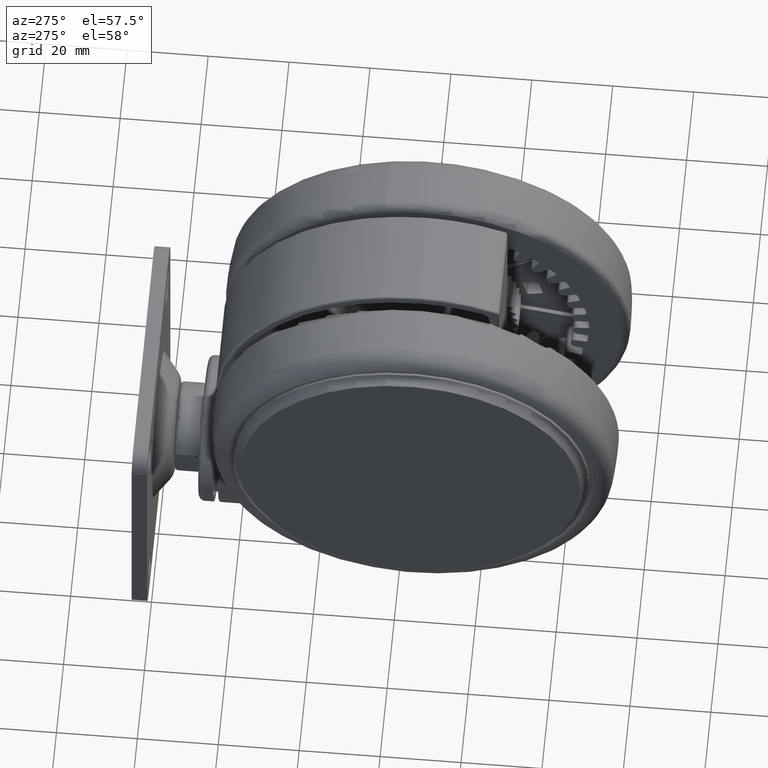
[diagram: clean part render]
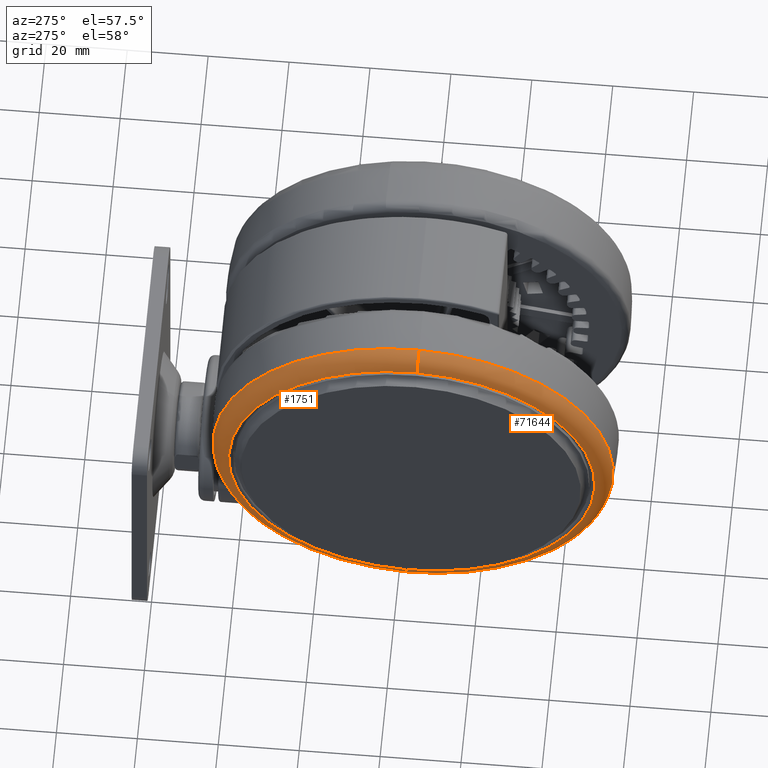
[diagram: same view with one multi-face feature highlighted, each face labeled with its STEP entity id]
A machine part, auxiliary view. The highlighted faces form ONE feature: a constant-radius fillet chain: 2 tangent blend faces with common blend radius 4.5 mm. The faces share edges in the B-rep.
Their STEP definitions:
[1] entity #1751 (Torus):
#1045 = DIRECTION ( 'NONE',  ( -0.0000000000000000000, 0.0000000000000000000, -1.000000000000000000 ) ) ;
#1751 = ADVANCED_FACE ( 'NONE', ( #69055 ), #20886, .T. ) ;
#2996 = CARTESIAN_POINT ( 'NONE',  ( 43.96698001099694200, 10.79441264795808700, -63.09779411578139700 ) ) ;
#5398 = AXIS2_PLACEMENT_3D ( 'NONE', #29126, #71377, #35204 ) ;
#7574 = CARTESIAN_POINT ( 'NONE',  ( -5.697708814478286100E-005, -6.891934304503744000E-006, -58.60606618158729500 ) ) ;
#9240 = AXIS2_PLACEMENT_3D ( 'NONE', #37251, #1045, #43348 ) ;
#11651 = CIRCLE ( 'NONE', #9240, 45.27272727276155700 ) ;
#13689 = CARTESIAN_POINT ( 'NONE',  ( 43.70211834236513900, 10.72938602421670500, -58.60606618158729500 ) ) ;
#14729 = VERTEX_POINT ( 'NONE', #44519 ) ;
#19720 = DIRECTION ( 'NONE',  ( -0.9711594515430745900, -0.2384309536921634900, 0.0000000000000000000 ) ) ;
#20886 = TOROIDAL_SURFACE ( 'NONE', #29363, 45.00000000000000000, 4.500000000013238300 ) ;
#21984 = DIRECTION ( 'NONE',  ( 0.2384309536921631300, -0.9711594515430748100, -0.0000000000000000000 ) ) ;
#21991 = VERTEX_POINT ( 'NONE', #34156 ) ;
#22271 = EDGE_CURVE ( 'NONE', #21991, #30421, #11651, .T. ) ;
#27586 = EDGE_CURVE ( 'NONE', #66061, #30421, #75117, .T. ) ;
#29071 = EDGE_CURVE ( 'NONE', #14729, #21991, #58859, .T. ) ;
#29126 = CARTESIAN_POINT ( 'NONE',  ( -5.697708814478286100E-005, -6.891934304503744000E-006, -59.10420351503972100 ) ) ;
#29363 = AXIS2_PLACEMENT_3D ( 'NONE', #7574, #43736, #49826 ) ;
#30421 = VERTEX_POINT ( 'NONE', #2996 ) ;
#34156 = CARTESIAN_POINT ( 'NONE',  ( -43.96709396517323400, -10.79442643182669100, -63.09779411578139700 ) ) ;
#35204 = DIRECTION ( 'NONE',  ( -0.9711594515430745900, -0.2384309536921631300, 0.0000000000000000000 ) ) ;
#37251 = CARTESIAN_POINT ( 'NONE',  ( -5.697708814478286100E-005, -6.891934304503744000E-006, -63.09779411578139700 ) ) ;
#43348 = DIRECTION ( 'NONE',  ( -0.9711594515430747000, -0.2384309536921630800, 0.0000000000000000000 ) ) ;
#43384 = ORIENTED_EDGE ( 'NONE', *, *, #27586, .T. ) ;
#43736 = DIRECTION ( 'NONE',  ( -0.0000000000000000000, 0.0000000000000000000, -1.000000000000000000 ) ) ;
#44519 = CARTESIAN_POINT ( 'NONE',  ( -48.04559126276596000, -11.79574500907045300, -59.10420351503972100 ) ) ;
#44741 = ORIENTED_EDGE ( 'NONE', *, *, #52254, .T. ) ;
#46051 = CIRCLE ( 'NONE', #5398, 49.47234381474539300 ) ;
#49826 = DIRECTION ( 'NONE',  ( -0.9711594515430745900, -0.2384309536921631100, 0.0000000000000000000 ) ) ;
#52254 = EDGE_CURVE ( 'NONE', #14729, #66061, #46051, .T. ) ;
#55931 = DIRECTION ( 'NONE',  ( -0.2384309536921631900, 0.9711594515430745900, 0.0000000000000000000 ) ) ;
#57278 = AXIS2_PLACEMENT_3D ( 'NONE', #58172, #21984, #64226 ) ;
#58172 = CARTESIAN_POINT ( 'NONE',  ( -43.70223229654143200, -10.72939980808531000, -58.60606618158729500 ) ) ;
#58859 = CIRCLE ( 'NONE', #57278, 4.500000000013234700 ) ;
#59788 = EDGE_LOOP ( 'NONE', ( #44741, #43384, #65367, #71798 ) ) ;
#64226 = DIRECTION ( 'NONE',  ( 0.9711594515430748100, 0.2384309536921631300, 0.0000000000000000000 ) ) ;
#65367 = ORIENTED_EDGE ( 'NONE', *, *, #22271, .F. ) ;
#66061 = VERTEX_POINT ( 'NONE', #68922 ) ;
#68922 = CARTESIAN_POINT ( 'NONE',  ( 48.04547730858966800, 11.79573122520185000, -59.10420351503972100 ) ) ;
#69055 = FACE_OUTER_BOUND ( 'NONE', #59788, .T. ) ;
#71377 = DIRECTION ( 'NONE',  ( -0.0000000000000000000, 0.0000000000000000000, -1.000000000000000000 ) ) ;
#71798 = ORIENTED_EDGE ( 'NONE', *, *, #29071, .F. ) ;
#75117 = CIRCLE ( 'NONE', #75842, 4.500000000013235600 ) ;
#75842 = AXIS2_PLACEMENT_3D ( 'NONE', #13689, #55931, #19720 ) ;
[2] entity #71644 (Torus):
#2996 = CARTESIAN_POINT ( 'NONE',  ( 43.96698001099694200, 10.79441264795808700, -63.09779411578139700 ) ) ;
#3667 = AXIS2_PLACEMENT_3D ( 'NONE', #64880, #28714, #70959 ) ;
#6847 = ORIENTED_EDGE ( 'NONE', *, *, #67767, .F. ) ;
#12581 = DIRECTION ( 'NONE',  ( -0.0000000000000000000, 0.0000000000000000000, -1.000000000000000000 ) ) ;
#13689 = CARTESIAN_POINT ( 'NONE',  ( 43.70211834236513900, 10.72938602421670500, -58.60606618158729500 ) ) ;
#14729 = VERTEX_POINT ( 'NONE', #44519 ) ;
#17101 = ORIENTED_EDGE ( 'NONE', *, *, #29071, .T. ) ;
#19334 = EDGE_LOOP ( 'NONE', ( #20562, #32425, #17101, #6847 ) ) ;
#19720 = DIRECTION ( 'NONE',  ( -0.9711594515430745900, -0.2384309536921634900, 0.0000000000000000000 ) ) ;
#20562 = ORIENTED_EDGE ( 'NONE', *, *, #27586, .F. ) ;
#21984 = DIRECTION ( 'NONE',  ( 0.2384309536921631300, -0.9711594515430748100, -0.0000000000000000000 ) ) ;
#21991 = VERTEX_POINT ( 'NONE', #34156 ) ;
#24237 = CIRCLE ( 'NONE', #50283, 49.47234381474539300 ) ;
#27586 = EDGE_CURVE ( 'NONE', #66061, #30421, #75117, .T. ) ;
#27742 = CIRCLE ( 'NONE', #3667, 45.27272727276155700 ) ;
#28714 = DIRECTION ( 'NONE',  ( -0.0000000000000000000, 0.0000000000000000000, -1.000000000000000000 ) ) ;
#29071 = EDGE_CURVE ( 'NONE', #14729, #21991, #58859, .T. ) ;
#30421 = VERTEX_POINT ( 'NONE', #2996 ) ;
#31479 = CARTESIAN_POINT ( 'NONE',  ( -5.697708814478286100E-005, -6.891934304503744000E-006, -59.10420351503972100 ) ) ;
#32425 = ORIENTED_EDGE ( 'NONE', *, *, #41551, .T. ) ;
#34156 = CARTESIAN_POINT ( 'NONE',  ( -43.96709396517323400, -10.79442643182669100, -63.09779411578139700 ) ) ;
#37587 = DIRECTION ( 'NONE',  ( -0.9711594515430745900, -0.2384309536921631300, 0.0000000000000000000 ) ) ;
#41551 = EDGE_CURVE ( 'NONE', #66061, #14729, #24237, .T. ) ;
#44519 = CARTESIAN_POINT ( 'NONE',  ( -48.04559126276596000, -11.79574500907045300, -59.10420351503972100 ) ) ;
#50283 = AXIS2_PLACEMENT_3D ( 'NONE', #31479, #73739, #37587 ) ;
#51019 = AXIS2_PLACEMENT_3D ( 'NONE', #66919, #12581, #55087 ) ;
#55087 = DIRECTION ( 'NONE',  ( -0.9711594515430745900, -0.2384309536921631100, 0.0000000000000000000 ) ) ;
#55931 = DIRECTION ( 'NONE',  ( -0.2384309536921631900, 0.9711594515430745900, 0.0000000000000000000 ) ) ;
#57278 = AXIS2_PLACEMENT_3D ( 'NONE', #58172, #21984, #64226 ) ;
#57411 = TOROIDAL_SURFACE ( 'NONE', #51019, 45.00000000000000000, 4.500000000013238300 ) ;
#58172 = CARTESIAN_POINT ( 'NONE',  ( -43.70223229654143200, -10.72939980808531000, -58.60606618158729500 ) ) ;
#58859 = CIRCLE ( 'NONE', #57278, 4.500000000013234700 ) ;
#64226 = DIRECTION ( 'NONE',  ( 0.9711594515430748100, 0.2384309536921631300, 0.0000000000000000000 ) ) ;
#64880 = CARTESIAN_POINT ( 'NONE',  ( -5.697708814478286100E-005, -6.891934304503744000E-006, -63.09779411578139700 ) ) ;
#66061 = VERTEX_POINT ( 'NONE', #68922 ) ;
#66919 = CARTESIAN_POINT ( 'NONE',  ( -5.697708814478286100E-005, -6.891934304503744000E-006, -58.60606618158729500 ) ) ;
#67767 = EDGE_CURVE ( 'NONE', #30421, #21991, #27742, .T. ) ;
#68922 = CARTESIAN_POINT ( 'NONE',  ( 48.04547730858966800, 11.79573122520185000, -59.10420351503972100 ) ) ;
#70959 = DIRECTION ( 'NONE',  ( -0.9711594515430747000, -0.2384309536921630800, 0.0000000000000000000 ) ) ;
#71644 = ADVANCED_FACE ( 'NONE', ( #73437 ), #57411, .T. ) ;
#73437 = FACE_OUTER_BOUND ( 'NONE', #19334, .T. ) ;
#73739 = DIRECTION ( 'NONE',  ( -0.0000000000000000000, 0.0000000000000000000, -1.000000000000000000 ) ) ;
#75117 = CIRCLE ( 'NONE', #75842, 4.500000000013235600 ) ;
#75842 = AXIS2_PLACEMENT_3D ( 'NONE', #13689, #55931, #19720 ) ;